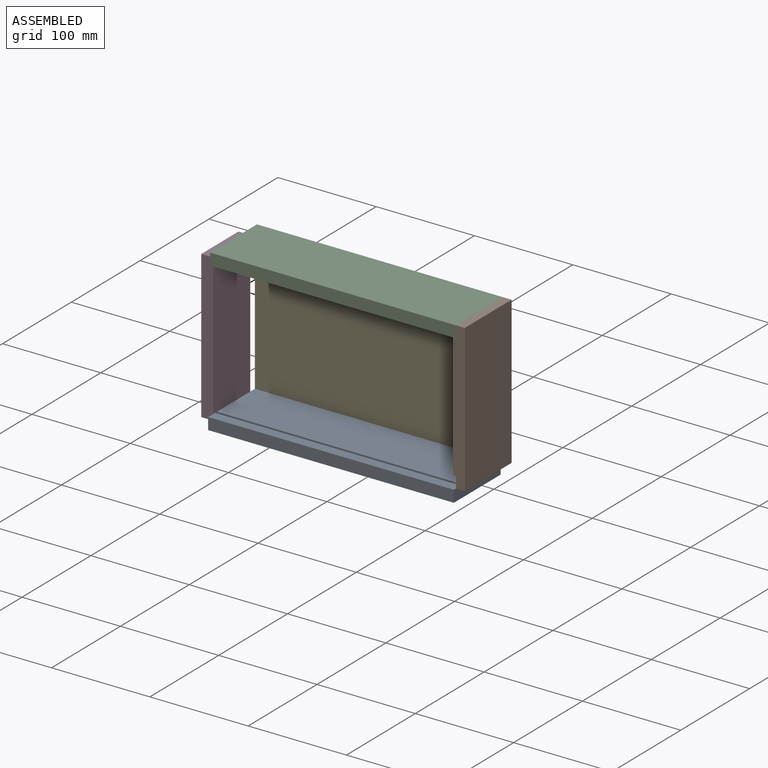
[diagram: assembled view]
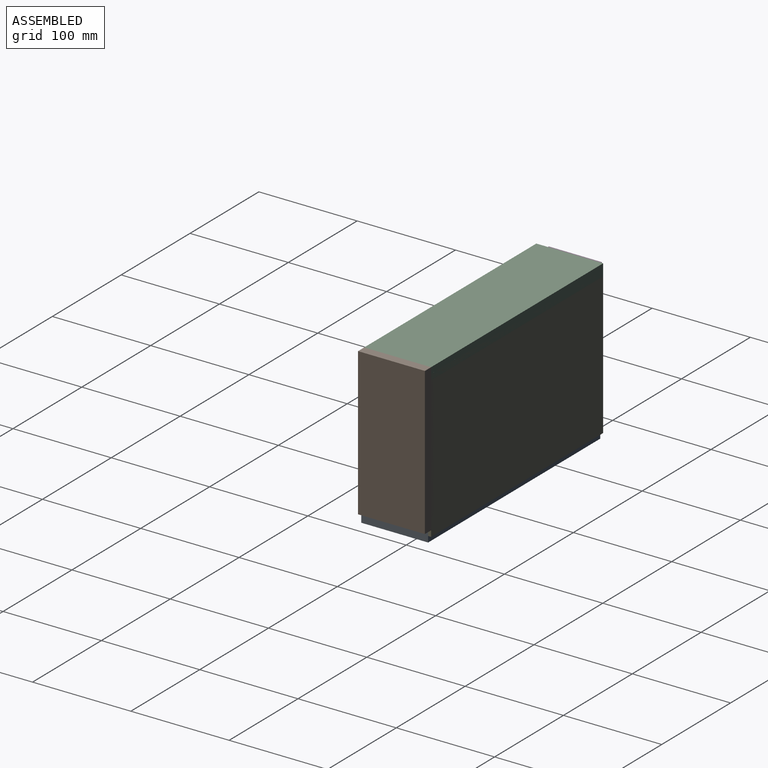
[diagram: assembled view, second angle]
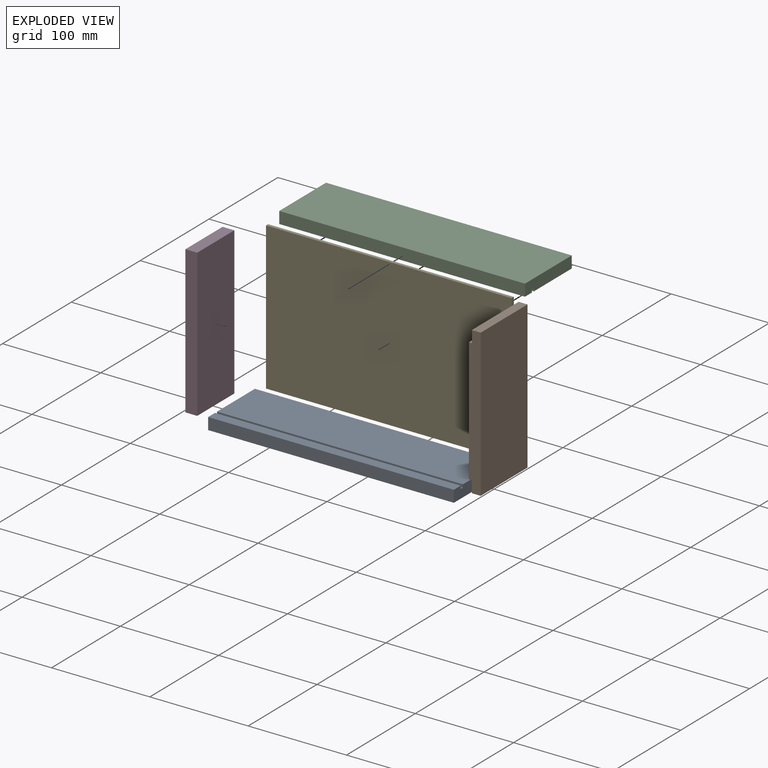
[diagram: exploded view]
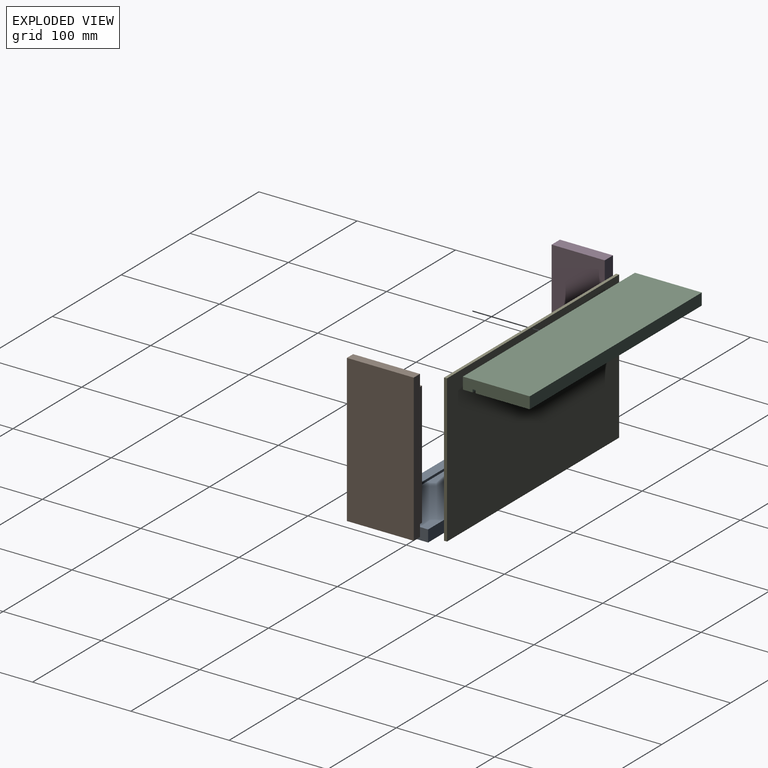
[diagram: exploded view, second angle]
ASSEMBLY  parts=5 mates=4
PART A: 10 faces, bbox 250x12x68 mm
  f0: plane 250x3mm, normal (0,0,-1), area 750mm2, adj f1,f7,f8,f9
  f1: plane 250x10mm, normal (0,1,0), area 2500mm2, adj f0,f2,f8,f9
  f2: plane 250x12mm, normal (0,0,1), area 3000mm2, adj f1,f3,f8,f9
  f3: plane 250x68mm, normal (0,-1,0), area 17000mm2, adj f2,f4,f8,f9
  f4: plane 250x12mm, normal (0,0,-1), area 3000mm2, adj f3,f5,f8,f9
  f5: plane 250x55mm, normal (0,1,0), area 13750mm2, adj f4,f6,f8,f9
  f6: plane 250x3mm, normal (0,0,1), area 750mm2, adj f5,f7,f8,f9
  f7: plane 250x3mm, normal (0,1,0), area 750mm2, adj f0,f6,f8,f9
  f8: plane 68x12mm, normal (1,0,0), area 807mm2, adj f0,f1,f2,f3,f4,f5,f6,f7
  f9: plane 68x12mm, normal (-1,0,0), area 807mm2, adj f0,f1,f2,f3,f4,f5,f6,f7
PART B: 16 faces, bbox 150x12x68 mm
  f0: plane 150x12mm, normal (0,0,-1), area 1729.9mm2, adj f1,f4,f5,f6,f8,f10,f11,f15
  f1: plane 68x9mm, normal (-1,0,0), area 612mm2, adj f0,f6,f8,f9
  f2: plane 126x10mm, normal (0,-1,0), area 1260mm2, adj f3,f9,f13,f14
  f3: plane 138x3mm, normal (0,0,-1), area 379.2mm2, adj f2,f5,f6,f12,f13,f14
  f4: plane 126x55mm, normal (0,-1,0), area 6930mm2, adj f0,f7,f11,f15
  f5: plane 68x9.16mm, normal (1,0,0), area 621.1mm2, adj f0,f3,f6,f7,f8,f9,f10,f12
  f6: plane 150x68mm, normal (0,-1,0), area 1230mm2, adj f0,f1,f3,f5,f7,f9,f14,f15
  f7: plane 138x3mm, normal (0,0,1), area 379.9mm2, adj f4,f5,f6,f10,f11,f15
  f8: plane 150x68mm, normal (0,1,0), area 10200mm2, adj f0,f1,f5,f9
  f9: plane 150x12mm, normal (0,0,1), area 1728mm2, adj f1,f2,f5,f6,f8,f12,f13,f14
  f10: plane 55x12mm, normal (0,-1,0), area 660mm2, adj f0,f5,f7,f11
  f11: plane 55x2.84mm, normal (1,0,0), area 156.4mm2, adj f0,f4,f7,f10
  f12: plane 12x10mm, normal (0,-1,0.01), area 120mm2, adj f3,f5,f9,f13
  f13: plane 10x3mm, normal (1,0,0), area 29.5mm2, adj f2,f3,f9,f12
  f14: plane 10x3mm, normal (-1,0,0), area 30mm2, adj f2,f3,f6,f9
  f15: plane 55x3mm, normal (-1,0,0), area 165mm2, adj f0,f4,f6,f7
PART C: 10 faces, bbox 250x68x12 mm
  f0: plane 250x10mm, normal (0,0,-1), area 2500mm2, adj f1,f7,f8,f9
  f1: plane 250x3mm, normal (0,1,0), area 750mm2, adj f0,f2,f8,f9
  f2: plane 250x3mm, normal (0,0,-1), area 750mm2, adj f1,f3,f8,f9
  f3: plane 250x3mm, normal (0,-1,0), area 750mm2, adj f2,f4,f8,f9
  f4: plane 250x55mm, normal (0,0,-1), area 13750mm2, adj f3,f5,f8,f9
  f5: plane 250x12mm, normal (0,1,0), area 3000mm2, adj f4,f6,f8,f9
  f6: plane 250x68mm, normal (0,0,1), area 17000mm2, adj f5,f7,f8,f9
  f7: plane 250x12mm, normal (0,-1,0), area 3000mm2, adj f0,f6,f8,f9
  f8: plane 68x12mm, normal (1,0,0), area 807mm2, adj f0,f1,f2,f3,f4,f5,f6,f7
  f9: plane 68x12mm, normal (-1,0,0), area 807mm2, adj f0,f1,f2,f3,f4,f5,f6,f7
PART D: 6 faces, bbox 150x12x54 mm
  f0: plane 150x12mm, normal (0,0,-1), area 1800mm2, adj f1,f3,f4,f5
  f1: plane 150x54mm, normal (0,1,0), area 8100mm2, adj f0,f2,f4,f5
  f2: plane 150x12mm, normal (0,0,1), area 1800mm2, adj f1,f3,f4,f5
  f3: plane 150x54mm, normal (0,-1,0), area 8100mm2, adj f0,f2,f4,f5
  f4: plane 54x12mm, normal (1,0,0), area 648mm2, adj f0,f1,f2,f3
  f5: plane 54x12mm, normal (-1,0,0), area 648mm2, adj f0,f1,f2,f3
PART E: 6 faces, bbox 250x150x3 mm
  f0: plane 250x3mm, normal (0,-1,0), area 750mm2, adj f1,f3,f4,f5
  f1: plane 150x3mm, normal (1,0,0), area 450mm2, adj f0,f2,f4,f5
  f2: plane 250x3mm, normal (0,1,0), area 750mm2, adj f1,f3,f4,f5
  f3: plane 150x3mm, normal (-1,0,0), area 450mm2, adj f0,f2,f4,f5
  f4: plane 250x150mm, normal (0,0,1), area 37500mm2, adj f0,f1,f2,f3
  f5: plane 250x150mm, normal (0,0,-1), area 37500mm2, adj f0,f1,f2,f3
PLACE A rot(axis=(1,0,0),90deg) t=(-30.95,-15.8,-122)mm
PLACE B rot(axis=(0.58,0.58,-0.58),120deg) t=(97.05,-12.8,-41)mm
PLACE C rot(axis=(0.01,-0.18,0.98),0deg) t=(-30.95,-12.8,28)mm
PLACE D rot(axis=(0.58,-0.58,0.58),120deg) t=(-161.95,-15.55,-47.06)mm
PLACE E rot(axis=(-1,0,0),90deg) t=(-30.95,19.7,-47)mm
MATE fastened E.f4 <-> C.f5  axis (0,1,0) through (-30.95,21.2,28)mm
MATE fastened B.f6 <-> C.f8  axis (-1,0,0) through (94.05,-12.8,34)mm
MATE fastened D.f3 <-> A.f9  axis (1,0,0) through (-155.95,-15.55,-122.06)mm
MATE fastened A.f4 <-> E.f5  axis (0,1,0) through (-30.95,18.2,-122)mm
